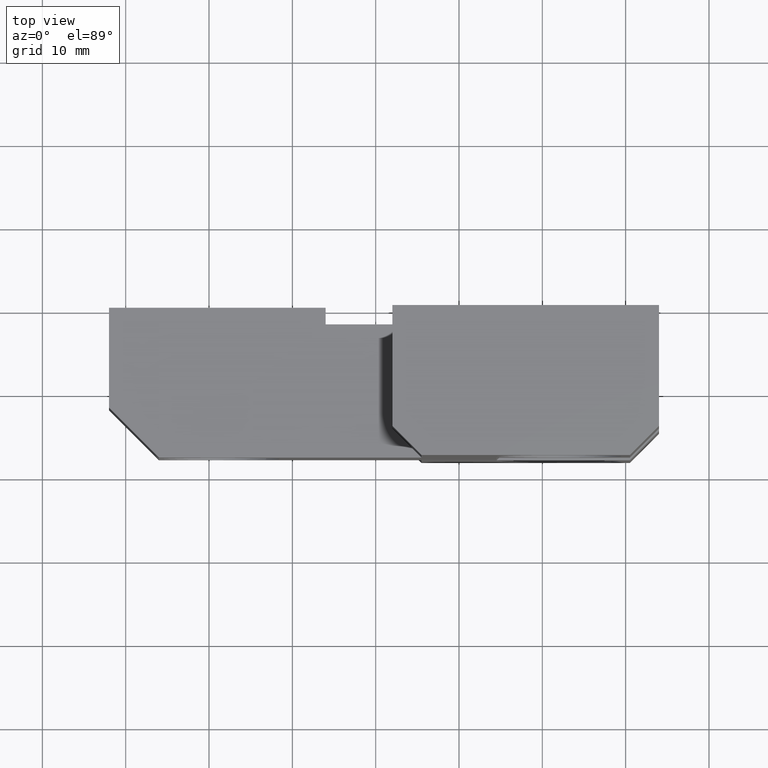
[diagram: clean part render]
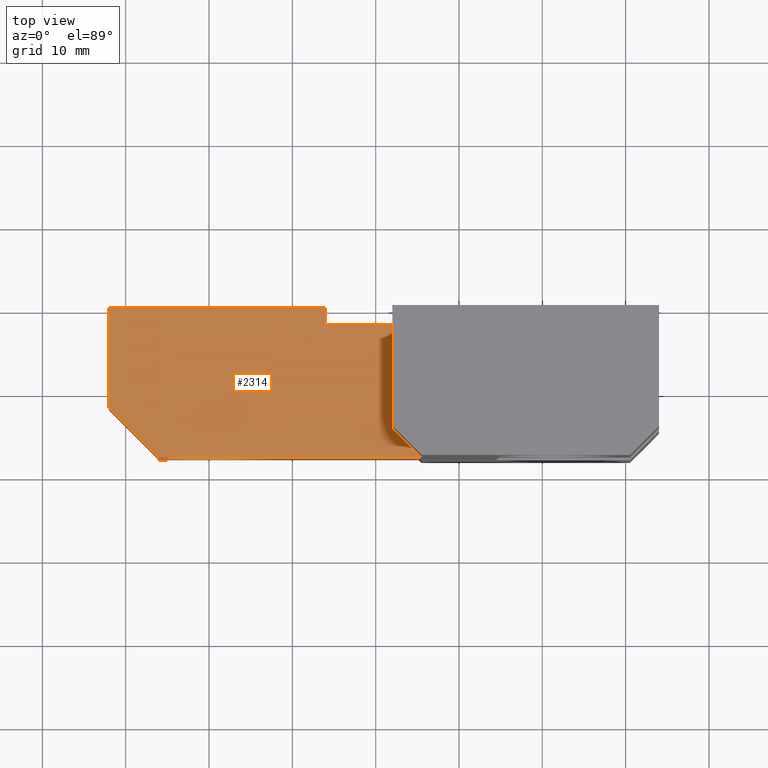
[diagram: same view with one face highlighted and labeled with its STEP entity id]
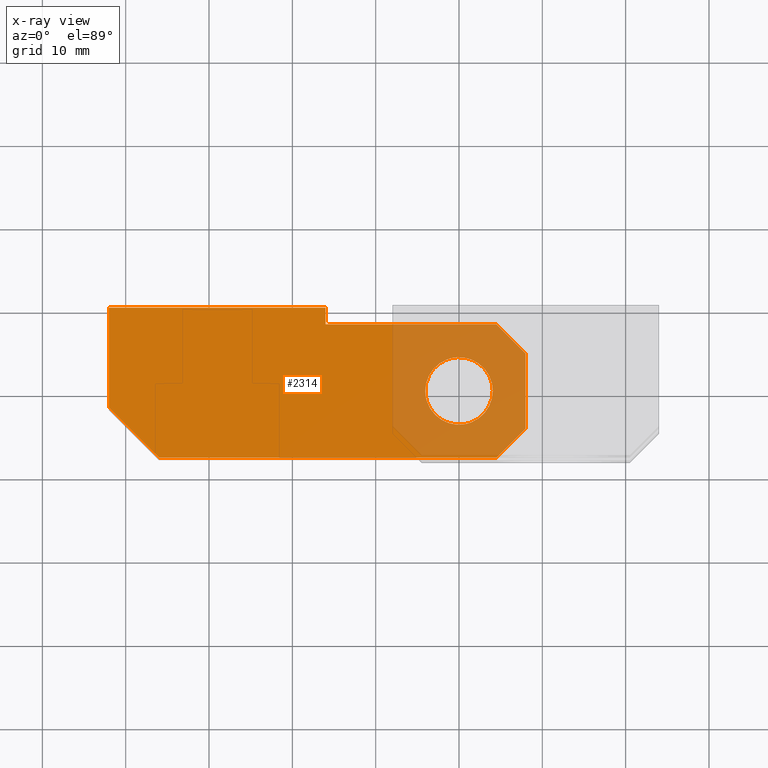
[diagram: x-ray of the same camera — body ghosted, the highlighted face saturated]
A machine part, top view. The second image highlights one B-rep face of the part: STEP entity #2314.
The next image is the same camera in x-ray: the body ghosted, the highlighted face saturated — about 24% of this face is hidden behind the body in this view.
In plain terms, the highlighted face is a freeform B-spline surface patch.
Its self-contained STEP definition (entity closure, byte-faithful):
#1639=CARTESIAN_POINT('',(-0.247242809696607,4.042446164519573,36.500001733657001));
#1640=VERTEX_POINT('',#1639);
#1646=CARTESIAN_POINT('',(-4.050000000000000,0.0,36.500001733657001));
#1647=VERTEX_POINT('',#1646);
#1648=CARTESIAN_POINT('',(-4.050000000000000,0.0,36.500001733657001));
#1649=CARTESIAN_POINT('',(-4.050000000000000,3.809863135815426,36.500001733656987));
#1650=CARTESIAN_POINT('',(-0.247242809696607,4.042446164519573,36.500001733657001));
#1658=(BOUNDED_CURVE()B_SPLINE_CURVE(2,(#1648,#1649,#1650),.UNSPECIFIED.,.F.,.U.)B_SPLINE_CURVE_WITH_KNOTS((3,3),(0.500000000000000,0.739333123391088),.UNSPECIFIED.)CURVE()GEOMETRIC_REPRESENTATION_ITEM()RATIONAL_B_SPLINE_CURVE((1.0,0.719603804485228,0.976072387046685))REPRESENTATION_ITEM(''));
#1659=EDGE_CURVE('',#1647,#1640,#1658,.T.);
#1661=CARTESIAN_POINT('',(0.478038650425865,-4.021688581765003,36.500001733657001));
#1662=VERTEX_POINT('',#1661);
#1663=CARTESIAN_POINT('',(0.478038650425865,-4.021688581765003,36.500001733657015));
#1664=CARTESIAN_POINT('',(0.239857684656927,-4.050000000000000,36.500001733657001));
#1665=CARTESIAN_POINT('',(0.0,-4.050000000000000,36.500001733657001));
#1666=CARTESIAN_POINT('',(-4.050000000000001,-4.050000000000001,36.500001733657008));
#1667=CARTESIAN_POINT('',(-4.050000000000000,0.0,36.500001733657001));
#1675=(BOUNDED_CURVE()B_SPLINE_CURVE(2,(#1663,#1664,#1665,#1666,#1667),.UNSPECIFIED.,.F.,.U.)B_SPLINE_CURVE_WITH_KNOTS((3,2,3),(0.229562473510098,0.250000000000000,0.500000000000000),.UNSPECIFIED.)CURVE()GEOMETRIC_REPRESENTATION_ITEM()RATIONAL_B_SPLINE_CURVE((0.956026754177014,0.976055948327149,1.0,0.707106781186548,1.0))REPRESENTATION_ITEM(''));
#1676=EDGE_CURVE('',#1662,#1647,#1675,.T.);
#1720=CARTESIAN_POINT('',(4.050000000000000,0.0,36.500001733657001));
#1721=VERTEX_POINT('',#1720);
#1722=CARTESIAN_POINT('',(4.050000000000000,0.0,36.500001733657001));
#1723=CARTESIAN_POINT('',(4.050000000000000,-3.597106829984154,36.500001733656994));
#1724=CARTESIAN_POINT('',(0.478038650425865,-4.021688581765003,36.500001733657001));
#1732=(BOUNDED_CURVE()B_SPLINE_CURVE(2,(#1722,#1723,#1724),.UNSPECIFIED.,.F.,.U.)B_SPLINE_CURVE_WITH_KNOTS((3,3),(0.0,0.229562473510098),.UNSPECIFIED.)CURVE()GEOMETRIC_REPRESENTATION_ITEM()RATIONAL_B_SPLINE_CURVE((1.0,0.731050832859398,0.956026754177014))REPRESENTATION_ITEM(''));
#1733=EDGE_CURVE('',#1721,#1662,#1732,.T.);
#1735=CARTESIAN_POINT('',(-0.247242809696607,4.042446164519573,36.500001733657001));
#1736=CARTESIAN_POINT('',(-0.123736798356684,4.050000000000000,36.500001733657001));
#1737=CARTESIAN_POINT('',(0.0,4.050000000000000,36.500001733657001));
#1738=CARTESIAN_POINT('',(4.050000000000001,4.050000000000001,36.500001733657008));
#1739=CARTESIAN_POINT('',(4.050000000000000,0.0,36.500001733657001));
#1747=(BOUNDED_CURVE()B_SPLINE_CURVE(2,(#1735,#1736,#1737,#1738,#1739),.UNSPECIFIED.,.F.,.U.)B_SPLINE_CURVE_WITH_KNOTS((3,2,3),(0.739333123391088,0.750000000000000,1.0),.UNSPECIFIED.)CURVE()GEOMETRIC_REPRESENTATION_ITEM()RATIONAL_B_SPLINE_CURVE((0.976072387046685,0.987502976701319,1.0,0.707106781186548,1.0))REPRESENTATION_ITEM(''));
#1748=EDGE_CURVE('',#1640,#1721,#1747,.T.);
#2238=CARTESIAN_POINT('',(-44.497503837125080,-8.899101031742713,36.500001733657001));
#2239=CARTESIAN_POINT('',(10.497500635238151,-8.899101031742713,36.500001733657001));
#2240=CARTESIAN_POINT('',(-44.497503837125080,10.899100498653690,36.500001733657001));
#2241=CARTESIAN_POINT('',(10.497500635238151,10.899100498653690,36.500001733657001));
#2242=B_SPLINE_SURFACE_WITH_KNOTS('',1,1,((#2238,#2240),(#2239,#2241)),.UNSPECIFIED.,.F.,.F.,.U.,(2,2),(2,2),(0.0,54.995004472363227),(0.0,19.798201530396408),.UNSPECIFIED.);
#2243=CARTESIAN_POINT('',(-16.000000759959200,10.0,36.500001733657001));
#2244=VERTEX_POINT('',#2243);
#2245=CARTESIAN_POINT('',(-16.000000759959200,7.999999905005130,36.500001733657001));
#2246=VERTEX_POINT('',#2245);
#2247=CARTESIAN_POINT('',(-16.000000759959200,10.0,36.500001733657001));
#2248=CARTESIAN_POINT('',(-16.000000759959200,7.999999905005130,36.500001733657001));
#2249=QUASI_UNIFORM_CURVE('',1,(#2247,#2248),.UNSPECIFIED.,.F.,.U.);
#2250=EDGE_CURVE('',#2244,#2246,#2249,.T.);
#2251=ORIENTED_EDGE('',*,*,#2250,.F.);
#2252=CARTESIAN_POINT('',(-42.000001994892898,10.0,36.500001733657001));
#2253=VERTEX_POINT('',#2252);
#2254=CARTESIAN_POINT('',(-42.000001994892898,10.0,36.500001733657001));
#2255=CARTESIAN_POINT('',(-16.000000759959200,10.0,36.500001733657001));
#2256=QUASI_UNIFORM_CURVE('',1,(#2254,#2255),.UNSPECIFIED.,.F.,.U.);
#2257=EDGE_CURVE('',#2253,#2244,#2256,.T.);
#2258=ORIENTED_EDGE('',*,*,#2257,.F.);
#2259=CARTESIAN_POINT('',(-42.000001994892898,-2.000000569969385,36.500001733657001));
#2260=VERTEX_POINT('',#2259);
#2261=CARTESIAN_POINT('',(-42.000001994892898,-2.000000569969385,36.500001733657001));
#2262=CARTESIAN_POINT('',(-42.000001994892898,10.0,36.500001733657001));
#2263=QUASI_UNIFORM_CURVE('',1,(#2261,#2262),.UNSPECIFIED.,.F.,.U.);
#2264=EDGE_CURVE('',#2260,#2253,#2263,.T.);
#2265=ORIENTED_EDGE('',*,*,#2264,.F.);
#2266=CARTESIAN_POINT('',(-36.000001709908197,-8.000000854954120,36.500001733657001));
#2267=VERTEX_POINT('',#2266);
#2268=CARTESIAN_POINT('',(-36.000001709908197,-8.000000854954120,36.500001733657001));
#2269=CARTESIAN_POINT('',(-42.000001994892898,-2.000000569969385,36.500001733657001));
#2270=QUASI_UNIFORM_CURVE('',1,(#2268,#2269),.UNSPECIFIED.,.F.,.U.);
#2271=EDGE_CURVE('',#2267,#2260,#2270,.T.);
#2272=ORIENTED_EDGE('',*,*,#2271,.F.);
#2273=CARTESIAN_POINT('',(4.499999240040810,-8.000000854954099,36.500001733657001));
#2274=VERTEX_POINT('',#2273);
#2275=CARTESIAN_POINT('',(4.499999240040810,-8.000000854954099,36.500001733657001));
#2276=CARTESIAN_POINT('',(-36.000001709908197,-8.000000854954120,36.500001733657001));
#2277=QUASI_UNIFORM_CURVE('',1,(#2275,#2276),.UNSPECIFIED.,.F.,.U.);
#2278=EDGE_CURVE('',#2274,#2267,#2277,.T.);
#2279=ORIENTED_EDGE('',*,*,#2278,.F.);
#2280=CARTESIAN_POINT('',(7.999999240040809,-4.500000854954100,36.500001733657001));
#2281=VERTEX_POINT('',#2280);
#2282=CARTESIAN_POINT('',(7.999999240040809,-4.500000854954100,36.500001733657001));
#2283=CARTESIAN_POINT('',(4.499999240040810,-8.000000854954099,36.500001733657001));
#2284=QUASI_UNIFORM_CURVE('',1,(#2282,#2283),.UNSPECIFIED.,.F.,.U.);
#2285=EDGE_CURVE('',#2281,#2274,#2284,.T.);
#2286=ORIENTED_EDGE('',*,*,#2285,.F.);
#2287=CARTESIAN_POINT('',(7.999999240040809,4.499999905005136,36.500001733657001));
#2288=VERTEX_POINT('',#2287);
#2289=CARTESIAN_POINT('',(7.999999240040809,4.499999905005136,36.500001733657001));
#2290=CARTESIAN_POINT('',(7.999999240040809,-4.500000854954100,36.500001733657001));
#2291=QUASI_UNIFORM_CURVE('',1,(#2289,#2290),.UNSPECIFIED.,.F.,.U.);
#2292=EDGE_CURVE('',#2288,#2281,#2291,.T.);
#2293=ORIENTED_EDGE('',*,*,#2292,.F.);
#2294=CARTESIAN_POINT('',(4.499999240040810,7.999999905005130,36.500001733657001));
#2295=VERTEX_POINT('',#2294);
#2296=CARTESIAN_POINT('',(4.499999240040810,7.999999905005130,36.500001733657001));
#2297=CARTESIAN_POINT('',(7.999999240040809,4.499999905005136,36.500001733657001));
#2298=QUASI_UNIFORM_CURVE('',1,(#2296,#2297),.UNSPECIFIED.,.F.,.U.);
#2299=EDGE_CURVE('',#2295,#2288,#2298,.T.);
#2300=ORIENTED_EDGE('',*,*,#2299,.F.);
#2301=CARTESIAN_POINT('',(-16.000000759959200,7.999999905005130,36.500001733657001));
#2302=CARTESIAN_POINT('',(4.499999240040810,7.999999905005130,36.500001733657001));
#2303=QUASI_UNIFORM_CURVE('',1,(#2301,#2302),.UNSPECIFIED.,.F.,.U.);
#2304=EDGE_CURVE('',#2246,#2295,#2303,.T.);
#2305=ORIENTED_EDGE('',*,*,#2304,.F.);
#2306=EDGE_LOOP('',(#2251,#2258,#2265,#2272,#2279,#2286,#2293,#2300,#2305));
#2307=FACE_OUTER_BOUND('',#2306,.T.);
#2308=ORIENTED_EDGE('',*,*,#1659,.T.);
#2309=ORIENTED_EDGE('',*,*,#1748,.T.);
#2310=ORIENTED_EDGE('',*,*,#1733,.T.);
#2311=ORIENTED_EDGE('',*,*,#1676,.T.);
#2312=EDGE_LOOP('',(#2308,#2309,#2310,#2311));
#2313=FACE_BOUND('',#2312,.T.);
#2314=ADVANCED_FACE('',(#2307,#2313),#2242,.T.);